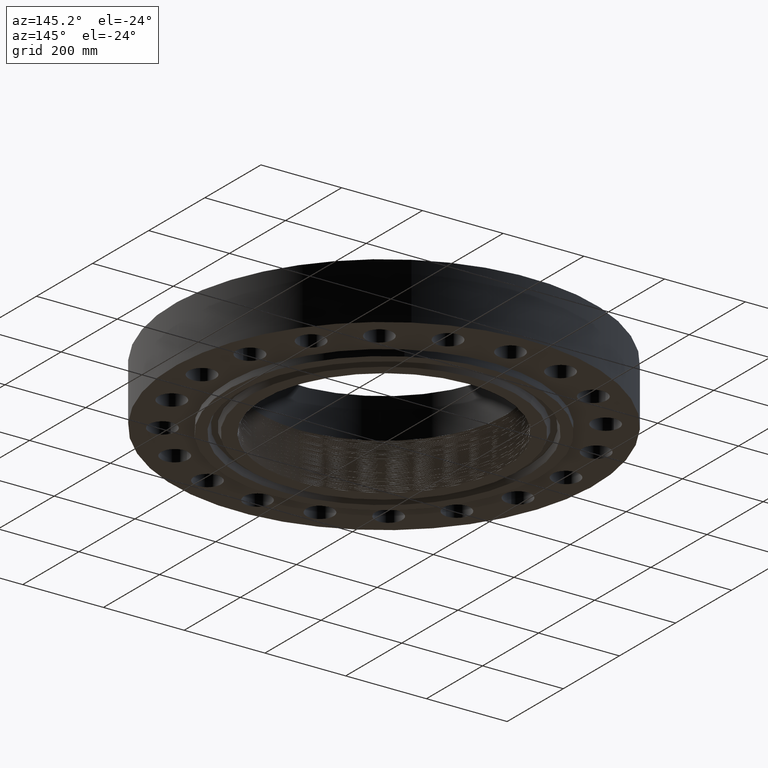
[diagram: clean part render]
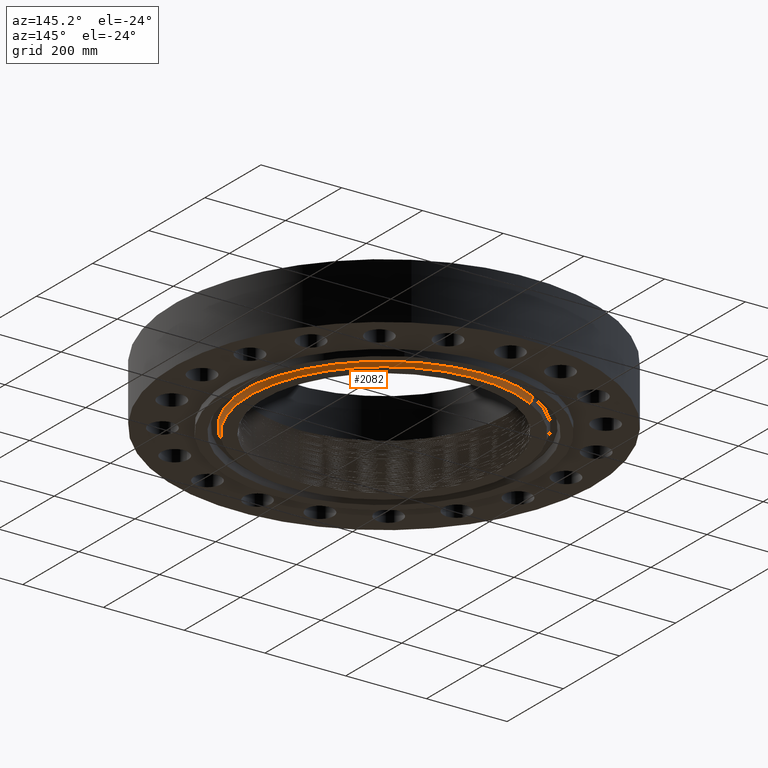
[diagram: same view with one face highlighted and labeled with its STEP entity id]
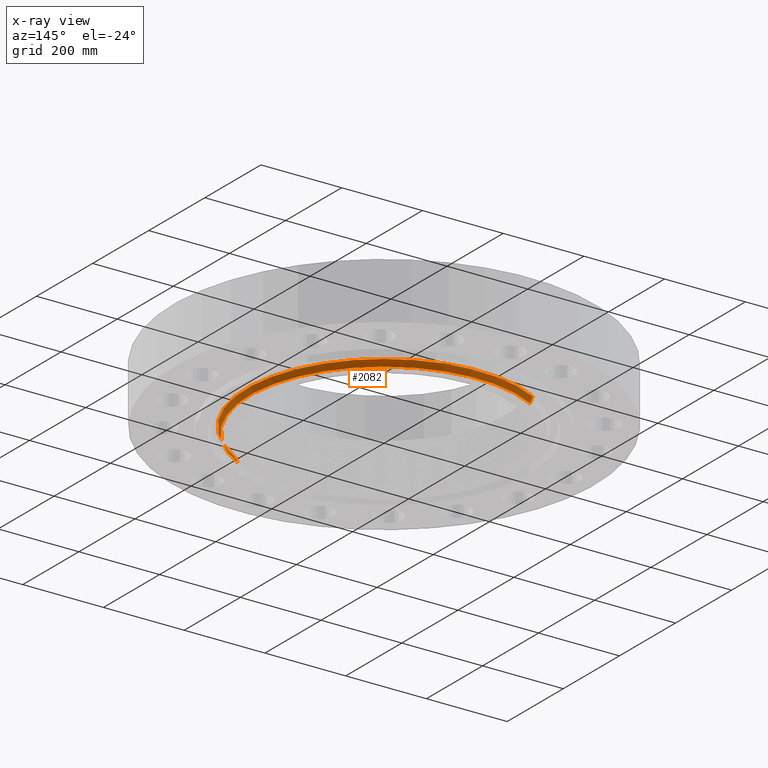
[diagram: x-ray of the same camera — body ghosted, the highlighted face saturated]
A machine part, auxiliary view. The second image highlights one B-rep face of the part: STEP entity #2082.
The next image is the same camera in x-ray: the body ghosted, the highlighted face saturated — about 0% of this face is hidden behind the body in this view.
In plain terms, the highlighted conical surface has half-angle 23 deg.
Its self-contained STEP definition (entity closure, byte-faithful):
#202=AXIS2_PLACEMENT_3D('Circle Axis2P3D',#200,#201,$) ;
#2032=AXIS2_PLACEMENT_3D('Circle Axis2P3D',#2030,#2031,$) ;
#2064=AXIS2_PLACEMENT_3D('Cone Axis2P3D',#2061,#2062,#2063) ;
#200=CARTESIAN_POINT('Axis2P3D Location',(1.1189649382E-015,-1.1189649382E-015,-0.625000000003)) ;
#204=CARTESIAN_POINT('Vertex',(-6.27747814612,11.4908466698,-0.625000000003)) ;
#206=CARTESIAN_POINT('Vertex',(6.27747814612,-11.4908466698,-0.625000000003)) ;
#2027=CARTESIAN_POINT('Vertex',(6.39303804879,-11.7023776528,-0.0571494201479)) ;
#2030=CARTESIAN_POINT('Axis2P3D Location',(0.,0.,-0.0571494201479)) ;
#2034=CARTESIAN_POINT('Vertex',(-6.39303804879,11.7023776528,-0.0571494201479)) ;
#2061=CARTESIAN_POINT('Axis2P3D Location',(0.,0.,-0.685000000003)) ;
#2066=CARTESIAN_POINT('Line Origine',(-6.33525809746,11.5966121613,-0.341074710075)) ;
#2071=CARTESIAN_POINT('Line Origine',(6.33525809746,-11.5966121613,-0.341074710075)) ;
#201=DIRECTION('Axis2P3D Direction',(0.,0.,-0.0393700787402)) ;
#2031=DIRECTION('Axis2P3D Direction',(0.,0.,0.0393700787402)) ;
#2062=DIRECTION('Axis2P3D Direction',(0.,0.,0.0393700787402)) ;
#2063=DIRECTION('Axis2P3D XDirection',(-0.0188750212049,0.0345504945626,0.)) ;
#2067=DIRECTION('Vector Direction',(-0.00737505833565,0.0134999537303,0.0362403485611)) ;
#2072=DIRECTION('Vector Direction',(0.00737505833565,-0.0134999537303,0.0362403485611)) ;
#2068=VECTOR('Line Direction',#2067,0.0393700787402) ;
#2073=VECTOR('Line Direction',#2072,0.0393700787402) ;
#2077=ORIENTED_EDGE('',*,*,#2070,.F.) ;
#2078=ORIENTED_EDGE('',*,*,#2036,.F.) ;
#2079=ORIENTED_EDGE('',*,*,#2075,.T.) ;
#2080=ORIENTED_EDGE('',*,*,#208,.F.) ;
#2082=ADVANCED_FACE('PartBody',(#2081),#2065,.T.) ;
#203=CIRCLE('generated circle',#202,13.0937500001) ;
#2033=CIRCLE('generated circle',#2032,13.3347882706) ;
#2065=CONICAL_SURFACE('Cone',#2064,13.0682815111,0.401425727959) ;
#208=EDGE_CURVE('',#205,#207,#203,.T.) ;
#2036=EDGE_CURVE('',#2028,#2035,#2033,.T.) ;
#2070=EDGE_CURVE('',#2035,#205,#2069,.F.) ;
#2075=EDGE_CURVE('',#2028,#207,#2074,.F.) ;
#2076=EDGE_LOOP('',(#2077,#2078,#2079,#2080)) ;
#2081=FACE_OUTER_BOUND('',#2076,.T.) ;
#2069=LINE('Line',#2066,#2068) ;
#2074=LINE('Line',#2071,#2073) ;
#205=VERTEX_POINT('',#204) ;
#207=VERTEX_POINT('',#206) ;
#2028=VERTEX_POINT('',#2027) ;
#2035=VERTEX_POINT('',#2034) ;